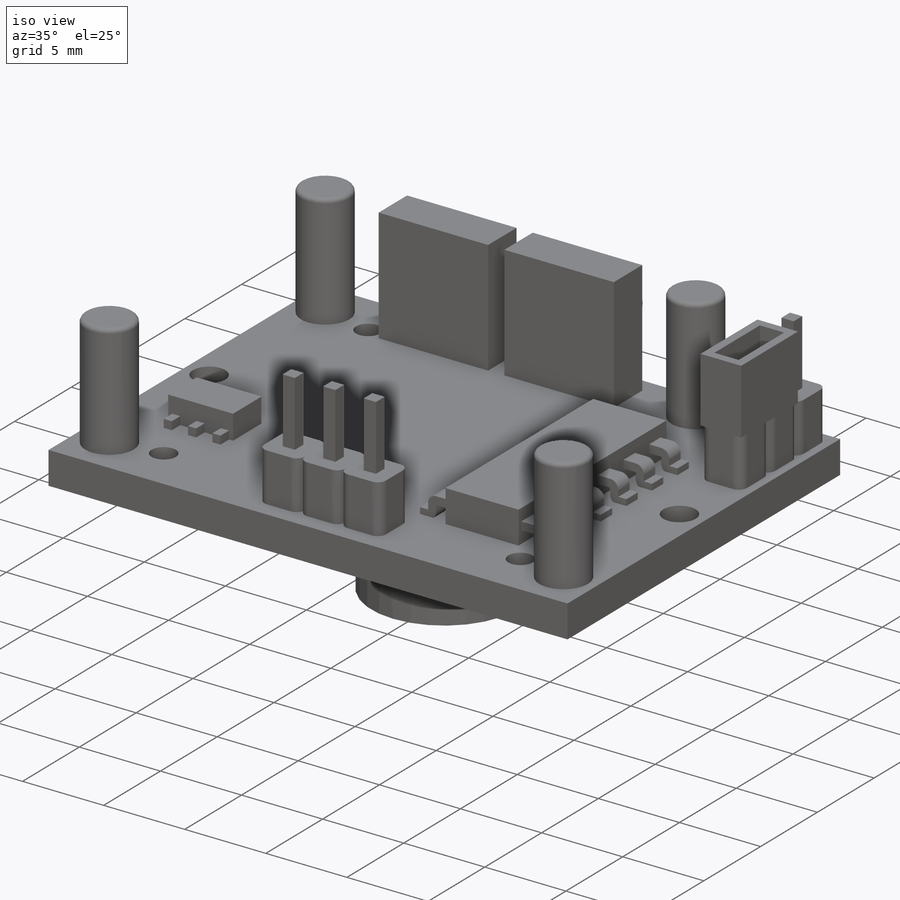
[diagram: iso view]
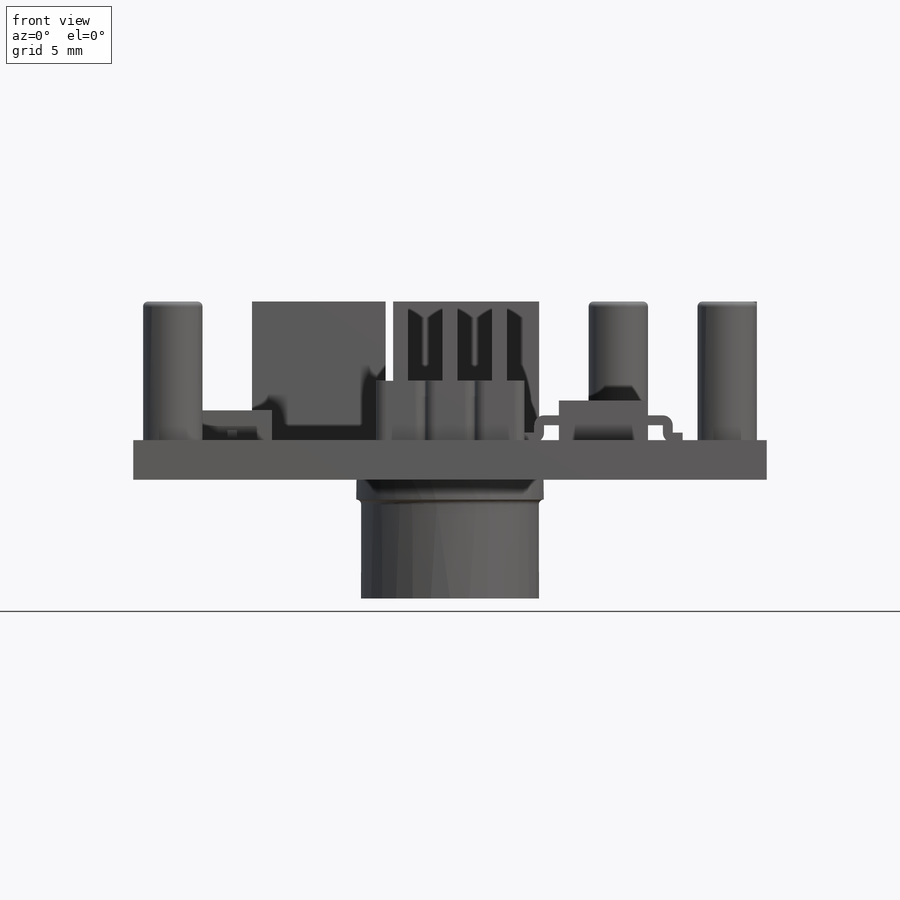
[diagram: front view]
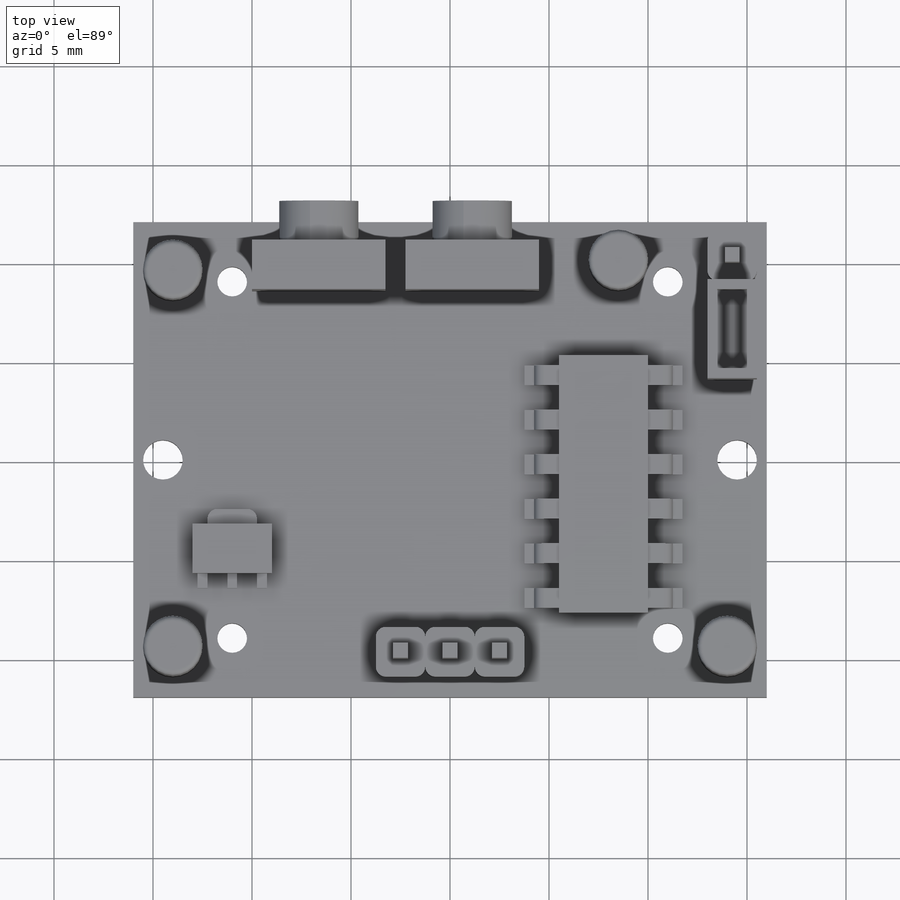
[diagram: top view]
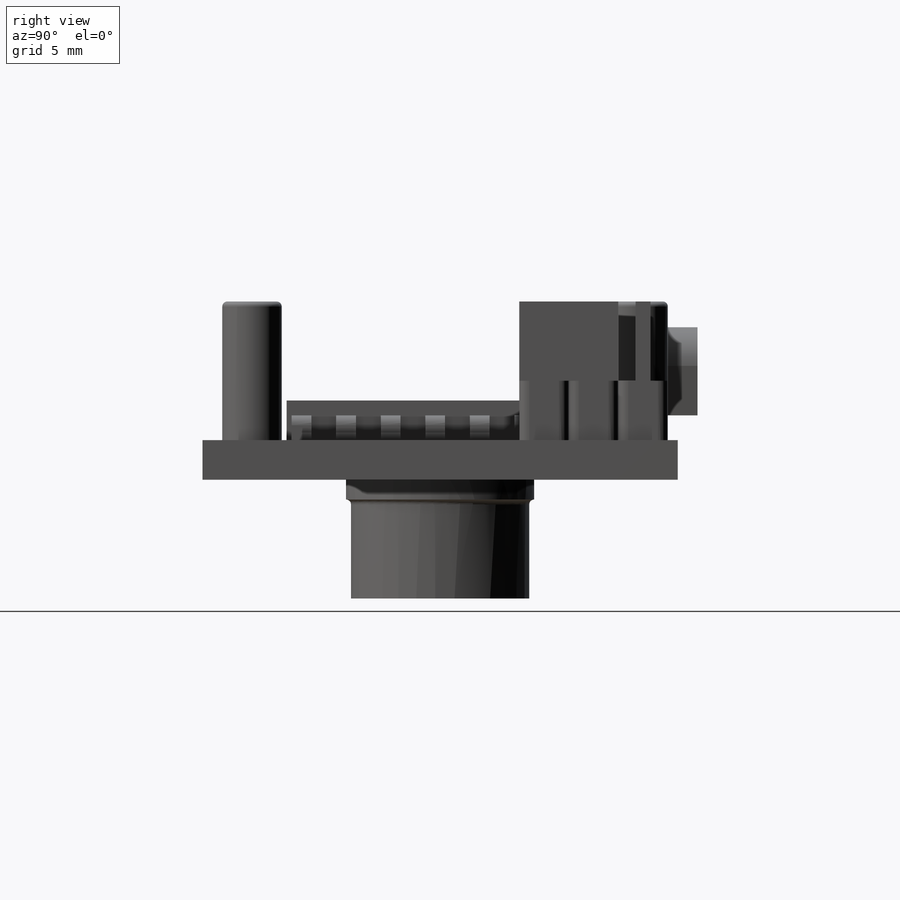
[diagram: right view]
SOLIDWORKS PART (.sldprt)
format: sldprt  version: not decoded by parser v0  size: 882,688 bytes
history: native  units: mm
features: sketch x18, extrude x12, cut_extrude x3, fillet x2, plane x2, material x1, sweep x1, pattern_linear x1, mirror x1 (+12 scaffold rows collapsed)
feature tree (53):
  scaffold x12  (default folders/planes/origin — collapsed)
  material  "Material <not specified>"
  sketch  "Sketch1"  dims[D1=32.0mm D2=24.0mm]
  extrude  "Boss-Extrude1"  Depth=2mm
  sketch  "Sketch2"  dims[c1.D1=2.0mm c1.D2=1.5mm c1.D4=1.5mm c1.D3=1.5mm c1.D5=3.0mm c1.D6=3.0mm c2.D5=5.0mm]
  cut_extrude  "Cut-Extrude1"  [1 undecoded]
  sketch  "Sketch3"  dims[D1=3.0mm D2=2.5mm D3=2.0mm D4=2.0mm D5=7.5mm]
  extrude  "Boss-Extrude2"  Depth=7mm
  fillet  "Fillet2"  Radius=0.25mm
  sketch  "Sketch5"  dims[c1.D1=0.5mm c1.D5=0.5mm c1.D2=1.5mm c1.D3=1.0mm c1.D4=1.5mm c1.D6=1.5mm c1.D7=0.5mm c1.D8=0.5mm c2.D6=1.5mm c2.D7=1.5mm c2.D8=0.5mm c2.D9=0.5mm]
  extrude  "Boss-Extrude3"  Depth=3mm
  sketch  "Sketch6"  dims[c1.D1=0.75mm c1.D2=1.25mm c1.D3=0.75mm c1.D4=~1.18783mm c1.D5=1.0mm c2.D4=1.25mm c2.D5=1.25mm c3.D4=1.25mm c3.D5=1.25mm]
  extrude  "Boss-Extrude4"  Depth=4mm
  sketch  "Sketch7"  dims[D1=2.5mm D2=4.0mm]
  extrude  "Boss-Extrude5"  Depth=1.5mm
  sketch  "Sketch8"  dims[D1=4.5mm D2=13.0mm D3=8.25mm D4=4.25mm]
  extrude  "Boss-Extrude6"  Depth=2mm
  sketch  "Sketch9"
  extrude  "Boss-Extrude7"  [1 undecoded]
  plane  "Plane1"  Offset=0mm
  sketch  "Sketch10"  dims[D1=1.5mm D2=4.0mm D3=0.5mm D4=0.5mm D5=4.0mm]
  cut_extrude  "Cut-Extrude2"  Depth=3mm
  sketch  "Sketch11"  dims[D1=9.5mm]
  extrude  "Boss-Extrude8"  Depth=1mm
  sketch  "Sketch12"  dims[D1=9.0mm]
  extrude  "Boss-Extrude9"  Depth=5mm
  sketch  "Sketch13"  dims[D1=5.25mm D2=3.0mm]
  fillet  "Fillet3"  Radius=0.25mm
  sketch  "Sketch14"  dims[D1=6.75mm D2=2.5mm D3=1.0mm D4=0.5mm]
  extrude  "Boss-Extrude10"  [1 undecoded]
  sketch  "Sketch15"  dims[c1.D1=4.0mm c1.D2=3.375mm c1.D3=~4.52325mm c2.D3=90.0deg c3.D3=3.25mm c3.D4=3.5mm c3.D5=2.5mm c3.D6=1.95mm]
  extrude  "Boss-Extrude11"  Depth=2mm
  sketch  "Sketch16"  dims[D1=0.75mm D2=1.0mm]
  cut_extrude  "Cut-Extrude3"  Depth=2mm
  sketch  "Sketch17"  dims[D1=1.0mm D2=0.5mm D3=1.0mm D4=1.0mm]
  sketch  "Sketch18"  dims[c1.D4=0.25mm c1.D1=0.125mm c1.D2=1.0mm c1.D3=~0.355768mm c2.D3=90.0deg c3.D3=0.75mm]
  sweep  "Sweep2"
  pattern_linear  "LPattern1"  Count1=6 Count2=1 Spacing1=2.25mm Spacing2=10mm
  plane  "Plane2"
  mirror  "Mirror1"
  sketch  "Sketch19"  dims[D1=0.5mm D2=0.5mm D3=0.25mm D4=0.75mm D5=0.75mm]
  extrude  "Boss-Extrude12"  Depth=0.5mm
decode coverage: 32 of 38 modeling features carry decoded parameters
note: ~ marks probable driven/reference dimensions
note: 3 parameter values undecoded
summary: no parameter record found for 3 features
note: suppression state not decoded; provenance and decode notes live in map.json
